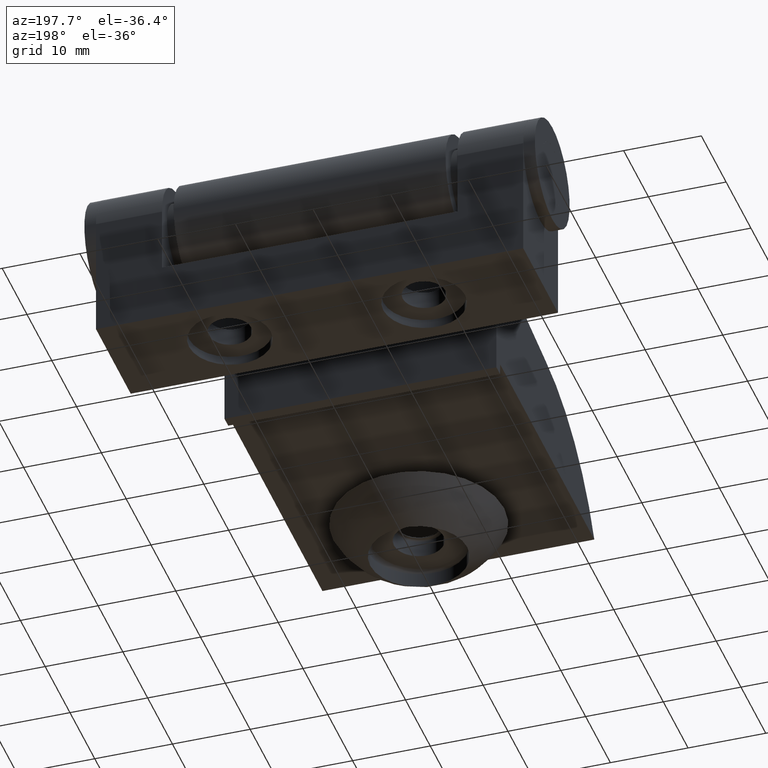
[diagram: clean part render]
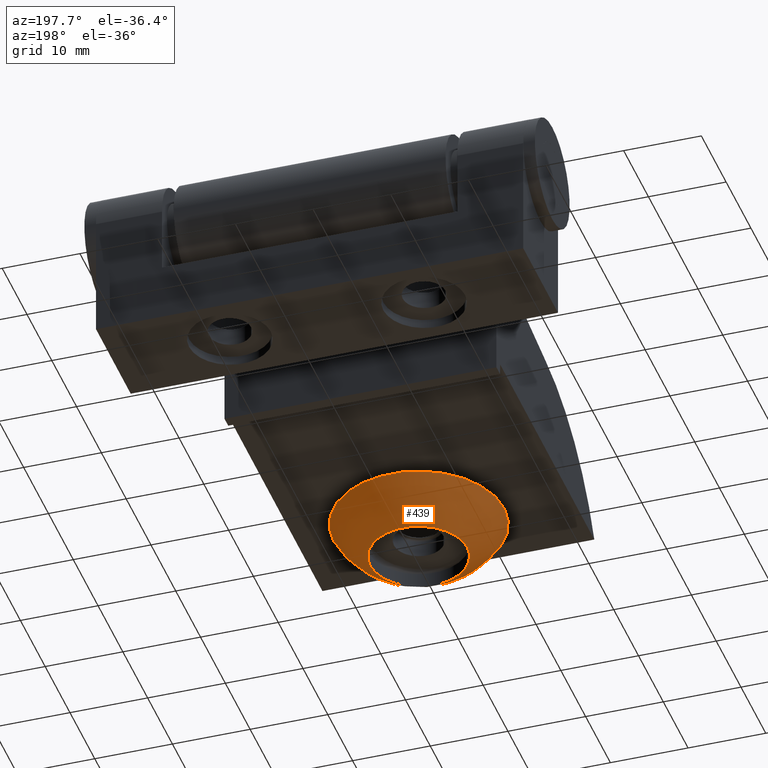
[diagram: same view with one face highlighted and labeled with its STEP entity id]
A machine part, auxiliary view. The second image highlights one B-rep face of the part: STEP entity #439.
In plain terms, the highlighted face is a freeform B-spline surface patch.
Its self-contained STEP definition (entity closure, byte-faithful):
#333=CARTESIAN_POINT('',(-10.999999999994657,-43.999999999987608,-4.999999999990902));
#334=VERTEX_POINT('',#333);
#335=CARTESIAN_POINT('',(10.999999999994657,-43.999999999987608,-4.999999999990902));
#336=VERTEX_POINT('',#335);
#337=CARTESIAN_POINT('',(0.0,-43.999999999987608,-4.999999999990902));
#338=DIRECTION('',(0.0,-1.836970E-016,-1.0));
#339=DIRECTION('',(1.0,0.0,0.0));
#340=AXIS2_PLACEMENT_3D('',#337,#338,#339);
#341=CIRCLE('',#340,10.999999999994657);
#342=EDGE_CURVE('',#334,#336,#341,.T.);
#344=CARTESIAN_POINT('',(0.0,-43.999999999987608,-4.999999999990902));
#345=DIRECTION('',(0.0,-1.836970E-016,-1.0));
#346=DIRECTION('',(1.0,0.0,0.0));
#347=AXIS2_PLACEMENT_3D('',#344,#345,#346);
#348=CIRCLE('',#347,10.999999999994657);
#349=EDGE_CURVE('',#336,#334,#348,.T.);
#374=CARTESIAN_POINT('',(10.999999999994600,-43.999999999987608,-4.999999999990902));
#375=CARTESIAN_POINT('',(10.999999999994595,-54.999999999982215,-4.999999999990901));
#376=CARTESIAN_POINT('',(-5.397599E-015,-54.999999999982201,-4.999999999990901));
#377=CARTESIAN_POINT('',(-10.999999999994605,-54.999999999982194,-4.999999999990901));
#378=CARTESIAN_POINT('',(-10.999999999994600,-43.999999999987594,-4.999999999990902));
#379=CARTESIAN_POINT('',(-10.999999999994595,-32.999999999992994,-4.999999999990904));
#380=CARTESIAN_POINT('',(5.397599E-015,-32.999999999993001,-4.999999999990904));
#381=CARTESIAN_POINT('',(10.999999999994605,-32.999999999993008,-4.999999999990904));
#382=CARTESIAN_POINT('',(10.999999999994600,-43.999999999987608,-4.999999999990902));
#383=CARTESIAN_POINT('',(9.320942028980007,-43.999999999987608,-8.124637681115722));
#384=CARTESIAN_POINT('',(9.320942028980001,-53.320942028967607,-8.124637681115720));
#385=CARTESIAN_POINT('',(-4.823613E-015,-53.320942028967607,-8.124637681115720));
#386=CARTESIAN_POINT('',(-9.320942028980012,-53.320942028967600,-8.124637681115720));
#387=CARTESIAN_POINT('',(-9.320942028980007,-43.999999999987594,-8.124637681115722));
#388=CARTESIAN_POINT('',(-9.320942028980001,-34.679057971007587,-8.124637681115724));
#389=CARTESIAN_POINT('',(4.823613E-015,-34.679057971007595,-8.124637681115724));
#390=CARTESIAN_POINT('',(9.320942028980012,-34.679057971007602,-8.124637681115724));
#391=CARTESIAN_POINT('',(9.320942028980007,-43.999999999987608,-8.124637681115722));
#392=CARTESIAN_POINT('',(6.250000000020645,-43.999999999987608,-9.899999999940732));
#393=CARTESIAN_POINT('',(6.250000000020641,-50.250000000008264,-9.899999999940730));
#394=CARTESIAN_POINT('',(-4.497484E-015,-50.250000000008242,-9.899999999940730));
#395=CARTESIAN_POINT('',(-6.250000000020649,-50.250000000008242,-9.899999999940730));
#396=CARTESIAN_POINT('',(-6.250000000020645,-43.999999999987594,-9.899999999940732));
#397=CARTESIAN_POINT('',(-6.250000000020641,-37.749999999966946,-9.899999999940734));
#398=CARTESIAN_POINT('',(4.497484E-015,-37.749999999966960,-9.899999999940734));
#399=CARTESIAN_POINT('',(6.250000000020649,-37.749999999966960,-9.899999999940734));
#400=CARTESIAN_POINT('',(6.250000000020645,-43.999999999987608,-9.899999999940732));
#408=(BOUNDED_SURFACE()B_SPLINE_SURFACE(2,2,((#374,#383,#392),(#375,#384,#393),(#376,#385,#394),(#377,#386,#395),(#378,#387,#396),(#379,#388,#397),(#380,#389,#398),(#381,#390,#399),(#382,#391,#400)),.UNSPECIFIED.,.T.,.F.,.U.)B_SPLINE_SURFACE_WITH_KNOTS((3,2,2,2,3),(3,3),(0.0,0.250000000000000,0.500000000000000,0.750000000000000,1.0),(0.0,1.0),.UNSPECIFIED.)GEOMETRIC_REPRESENTATION_ITEM()RATIONAL_B_SPLINE_SURFACE(((1.0,0.961943686115659,1.0),(0.707106781186548,0.680196903571966,0.707106781186548),(1.0,0.961943686115659,1.0),(0.707106781186548,0.680196903571966,0.707106781186548),(1.0,0.961943686115659,1.0),(0.707106781186548,0.680196903571966,0.707106781186548),(1.0,0.961943686115659,1.0),(0.707106781186548,0.680196903571966,0.707106781186548),(1.0,0.961943686115659,1.0)))REPRESENTATION_ITEM('')SURFACE());
#409=ORIENTED_EDGE('',*,*,#349,.T.);
#410=ORIENTED_EDGE('',*,*,#342,.T.);
#411=CARTESIAN_POINT('',(6.250000000020577,-43.999999999987608,-9.899999999940516));
#412=VERTEX_POINT('',#411);
#413=CARTESIAN_POINT('',(2.160044E-011,-43.999999999987608,0.910969387815501));
#414=DIRECTION('',(1.232595E-032,1.0,-1.836970E-016));
#415=DIRECTION('',(0.880875506386379,-8.695262E-017,-0.473348013884648));
#416=AXIS2_PLACEMENT_3D('',#413,#414,#415);
#417=CIRCLE('',#416,12.487576190077496);
#418=EDGE_CURVE('',#336,#412,#417,.T.);
#419=ORIENTED_EDGE('',*,*,#418,.T.);
#420=CARTESIAN_POINT('',(-6.250000000020577,-43.999999999987608,-9.899999999940516));
#421=VERTEX_POINT('',#420);
#422=CARTESIAN_POINT('',(0.0,-43.999999999987608,-9.899999999940516));
#423=DIRECTION('',(0.0,-1.836970E-016,-1.0));
#424=DIRECTION('',(1.0,0.0,0.0));
#425=AXIS2_PLACEMENT_3D('',#422,#423,#424);
#426=CIRCLE('',#425,6.250000000020577);
#427=EDGE_CURVE('',#421,#412,#426,.T.);
#428=ORIENTED_EDGE('',*,*,#427,.F.);
#429=CARTESIAN_POINT('',(0.0,-43.999999999987608,-9.899999999940516));
#430=DIRECTION('',(0.0,-1.836970E-016,-1.0));
#431=DIRECTION('',(1.0,0.0,0.0));
#432=AXIS2_PLACEMENT_3D('',#429,#430,#431);
#433=CIRCLE('',#432,6.250000000020577);
#434=EDGE_CURVE('',#412,#421,#433,.T.);
#435=ORIENTED_EDGE('',*,*,#434,.F.);
#436=ORIENTED_EDGE('',*,*,#418,.F.);
#437=EDGE_LOOP('',(#409,#410,#419,#428,#435,#436));
#438=FACE_OUTER_BOUND('',#437,.T.);
#439=ADVANCED_FACE('',(#438),#408,.T.);